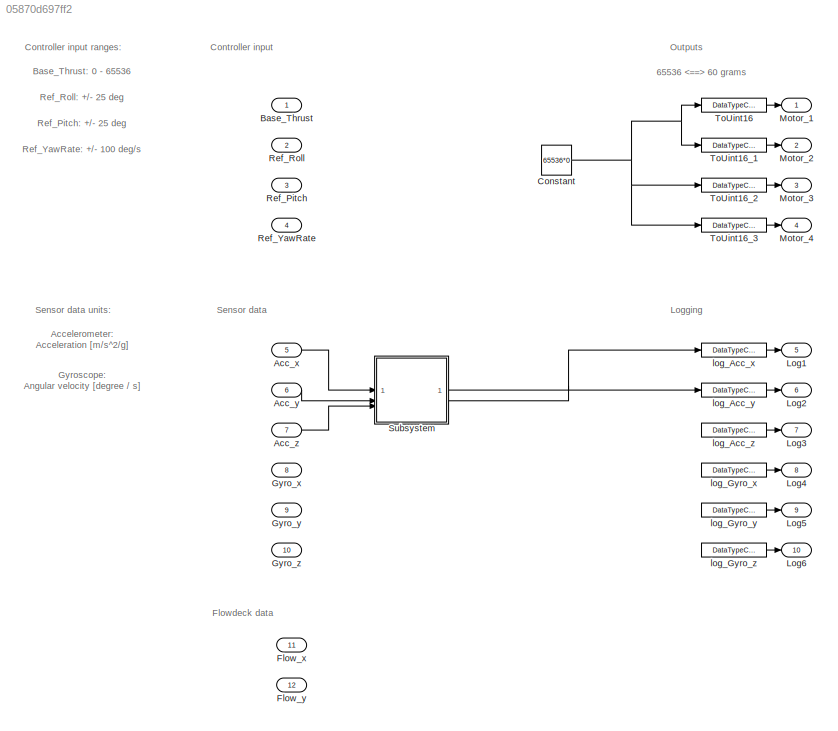
MODEL slx_05870d697ff2
KIND model
CONFIG AbsTol = auto
CONFIG EnableMultiTasking = off
CONFIG FixedStep = 0.01
CONFIG MaxStep = auto
CONFIG MinStep = auto
CONFIG RelTol = 1e-3
CONFIG SampleTimeConstraint = Unconstrained
CONFIG SolverName = FixedStepDiscrete
CONFIG StartTime = 0.0
CONFIG StopTime = 25
BLOCK [Inport] Acc_x
  OutDataTypeStr = double
  Port = 5
  PortDimensions = 1
  SignalType = real
  VarSizeSig = No
BLOCK [Inport] Acc_y
  OutDataTypeStr = double
  Port = 6
  PortDimensions = 1
  SignalType = real
  VarSizeSig = No
BLOCK [Inport] Acc_z
  OutDataTypeStr = double
  Port = 7
  PortDimensions = 1
  SignalType = real
  VarSizeSig = No
BLOCK [Inport] Base_Thrust
  OutDataTypeStr = double
  SignalType = real
BLOCK [Constant] Constant
  Value = 65536*0
BLOCK [Inport] Flow_x
  OutDataTypeStr = int16
  Port = 11
  PortDimensions = 1
  SignalType = real
  VarSizeSig = No
BLOCK [Inport] Flow_y
  OutDataTypeStr = int16
  Port = 12
  PortDimensions = 1
  SignalType = real
  VarSizeSig = No
BLOCK [Inport] Gyro_x
  OutDataTypeStr = double
  Port = 8
  PortDimensions = 1
  SignalType = real
  VarSizeSig = No
BLOCK [Inport] Gyro_y
  OutDataTypeStr = double
  Port = 9
  PortDimensions = 1
  SignalType = real
  VarSizeSig = No
BLOCK [Inport] Gyro_z
  OutDataTypeStr = double
  Port = 10
  PortDimensions = 1
  SignalType = real
  VarSizeSig = No
BLOCK [Outport] Log1
  OutDataTypeStr = double
  Port = 5
  VectorParamsAs1DForOutWhenUnconnected = off
BLOCK [Outport] Log2
  OutDataTypeStr = double
  Port = 6
  VectorParamsAs1DForOutWhenUnconnected = off
BLOCK [Outport] Log3
  OutDataTypeStr = double
  Port = 7
  VectorParamsAs1DForOutWhenUnconnected = off
BLOCK [Outport] Log4
  OutDataTypeStr = double
  Port = 8
  VectorParamsAs1DForOutWhenUnconnected = off
BLOCK [Outport] Log5
  OutDataTypeStr = double
  Port = 9
  VectorParamsAs1DForOutWhenUnconnected = off
BLOCK [Outport] Log6
  OutDataTypeStr = double
  Port = 10
  VectorParamsAs1DForOutWhenUnconnected = off
BLOCK [Outport] Motor_1
  LockScale = on
  OutDataTypeStr = uint16
  VectorParamsAs1DForOutWhenUnconnected = off
BLOCK [Outport] Motor_2
  LockScale = on
  OutDataTypeStr = uint16
  Port = 2
  VectorParamsAs1DForOutWhenUnconnected = off
BLOCK [Outport] Motor_3
  LockScale = on
  OutDataTypeStr = uint16
  Port = 3
  VectorParamsAs1DForOutWhenUnconnected = off
BLOCK [Outport] Motor_4
  LockScale = on
  OutDataTypeStr = uint16
  Port = 4
  VectorParamsAs1DForOutWhenUnconnected = off
BLOCK [Inport] Ref_Pitch
  OutDataTypeStr = double
  Port = 3
BLOCK [Inport] Ref_Roll
  OutDataTypeStr = double
  Port = 2
BLOCK [Inport] Ref_YawRate
  OutDataTypeStr = double
  Port = 4
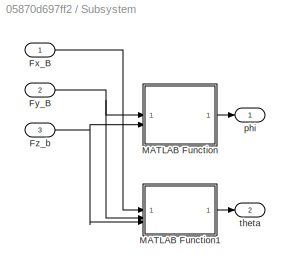
BLOCK [SubSystem] Subsystem
BLOCK [Inport] Subsystem/Fx_B
BLOCK [Inport] Subsystem/Fy_B
  Port = 2
BLOCK [Inport] Subsystem/Fz_b
  Port = 3
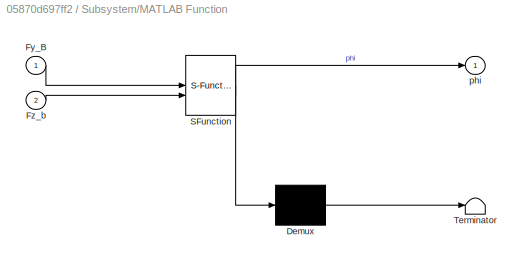
BLOCK [SubSystem] Subsystem/MATLAB Function
  ErrorFcn = Stateflow.Translate.translate
  PermitHierarchicalResolution = ExplicitOnly
  SFBlockType = MATLAB Function
  TreatAsAtomicUnit = on
BLOCK [Demux] Subsystem/MATLAB Function/ Demux 
  Outputs = 1
BLOCK [S-Function] Subsystem/MATLAB Function/ SFunction 
  EnableBusSupport = off
  FunctionName = sf_sfun
  PortCounts = [2 2]
  SFcnIsStateOwnerBlock = off
  SFunctionDeploymentMode = off
  Tag = Stateflow S-Function 2
BLOCK [Terminator] Subsystem/MATLAB Function/ Terminator 
BLOCK [Inport] Subsystem/MATLAB Function/Fy_B
BLOCK [Inport] Subsystem/MATLAB Function/Fz_b
  Port = 2
BLOCK [Outport] Subsystem/MATLAB Function/phi
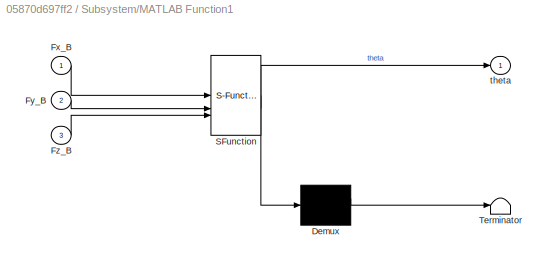
BLOCK [SubSystem] Subsystem/MATLAB Function1
  ErrorFcn = Stateflow.Translate.translate
  PermitHierarchicalResolution = ExplicitOnly
  SFBlockType = MATLAB Function
  TreatAsAtomicUnit = on
BLOCK [Demux] Subsystem/MATLAB Function1/ Demux 
  Outputs = 1
BLOCK [S-Function] Subsystem/MATLAB Function1/ SFunction 
  EnableBusSupport = off
  FunctionName = sf_sfun
  PortCounts = [3 2]
  SFcnIsStateOwnerBlock = off
  SFunctionDeploymentMode = off
  Tag = Stateflow S-Function 1
BLOCK [Terminator] Subsystem/MATLAB Function1/ Terminator 
BLOCK [Inport] Subsystem/MATLAB Function1/Fx_B
BLOCK [Inport] Subsystem/MATLAB Function1/Fy_B
  Port = 2
BLOCK [Inport] Subsystem/MATLAB Function1/Fz_B
  Port = 3
BLOCK [Outport] Subsystem/MATLAB Function1/theta
BLOCK [Outport] Subsystem/phi
BLOCK [Outport] Subsystem/theta
  Port = 2
BLOCK [DataTypeConversion] ToUint16
  OutDataTypeStr = uint16
  RndMeth = Floor
BLOCK [DataTypeConversion] ToUint16_1
  OutDataTypeStr = uint16
  RndMeth = Floor
BLOCK [DataTypeConversion] ToUint16_2
  OutDataTypeStr = uint16
  RndMeth = Floor
BLOCK [DataTypeConversion] ToUint16_3
  OutDataTypeStr = uint16
  RndMeth = Floor
BLOCK [DataTypeConversion] log_Acc_x
  OutDataTypeStr = double
  RndMeth = Floor
BLOCK [DataTypeConversion] log_Acc_y
  OutDataTypeStr = double
  RndMeth = Floor
BLOCK [DataTypeConversion] log_Acc_z
  OutDataTypeStr = double
  RndMeth = Floor
BLOCK [DataTypeConversion] log_Gyro_x
  OutDataTypeStr = double
  RndMeth = Floor
BLOCK [DataTypeConversion] log_Gyro_y
  OutDataTypeStr = double
  RndMeth = Floor
BLOCK [DataTypeConversion] log_Gyro_z
  OutDataTypeStr = double
  RndMeth = Floor
ANNOTATION (root): 65536 60 grams
ANNOTATION (root): Accelerometer: Acceleration [m/s^2/g]
ANNOTATION (root): Base_Thrust: 0 - 65536
ANNOTATION (root): Controller input
ANNOTATION (root): Controller input ranges:
ANNOTATION (root): Flowdeck data
ANNOTATION (root): Gyroscope: Angular velocity [degree / s]
ANNOTATION (root): Logging
ANNOTATION (root): Outputs
ANNOTATION (root): Ref_Pitch: +/- 25 deg
ANNOTATION (root): Ref_Roll: +/- 25 deg
ANNOTATION (root): Ref_YawRate: +/- 100 deg/s
ANNOTATION (root): Sensor data
ANNOTATION (root): Sensor data units:
LINE Acc_x:1 -> Subsystem:1
LINE Acc_y:1 -> Subsystem:2
LINE Acc_z:1 -> Subsystem:3
NET Constant:1 -> ToUint16:1, ToUint16_1:1, ToUint16_2:1, ToUint16_3:1
LINE Subsystem/Fx_B:1 -> Subsystem/MATLAB Function1:1
NET Subsystem/Fy_B:1 -> Subsystem/MATLAB Function1:2, Subsystem/MATLAB Function:1
NET Subsystem/Fz_b:1 -> Subsystem/MATLAB Function1:3, Subsystem/MATLAB Function:2
LINE Subsystem/MATLAB Function1:1 -> Subsystem/theta:1
LINE Subsystem/MATLAB Function:1 -> Subsystem/phi:1
LINE Subsystem:1 -> log_Acc_x:1
LINE Subsystem:2 -> log_Acc_y:1
LINE ToUint16:1 -> Motor_1:1
LINE ToUint16_1:1 -> Motor_2:1
LINE ToUint16_2:1 -> Motor_3:1
LINE ToUint16_3:1 -> Motor_4:1
LINE log_Acc_x:1 -> Log1:1
LINE log_Acc_y:1 -> Log2:1
LINE log_Acc_z:1 -> Log3:1
LINE log_Gyro_x:1 -> Log4:1
LINE log_Gyro_y:1 -> Log5:1
LINE log_Gyro_z:1 -> Log6:1
note: NET lines group one-source signal fan-out (src -> all destinations, sorted); 1:1 wires keep LINE
CHART Subsystem/MATLAB Function states=1 transitions=1
  STATE_LABEL 'eML_blk_kernel()'
  STATE_LABEL 'SCRIPT:\nfunction phi = fcn(Fy_B,Fz_b)\n\nphi= arctan2(Fy_B,Fz_b);\n'
CHART Subsystem/MATLAB Function1 states=1 transitions=1
  STATE_LABEL 'eML_blk_kernel()'
  STATE_LABEL 'SCRIPT:\nfunction theta = fcn(Fx_B,Fy_B,Fz_B)\n\ntheta = arctan2(-Fx_B,sqrt((Fy_B).^2+(Fz_B).^2));\n'
CHART  states=0 transitions=0
CHART  states=0 transitions=0
